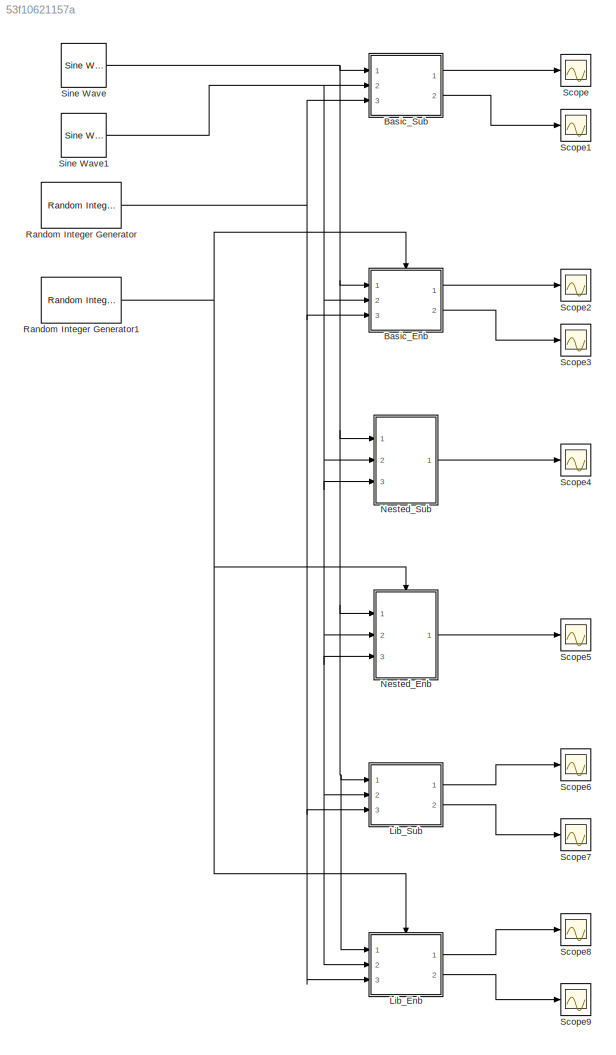
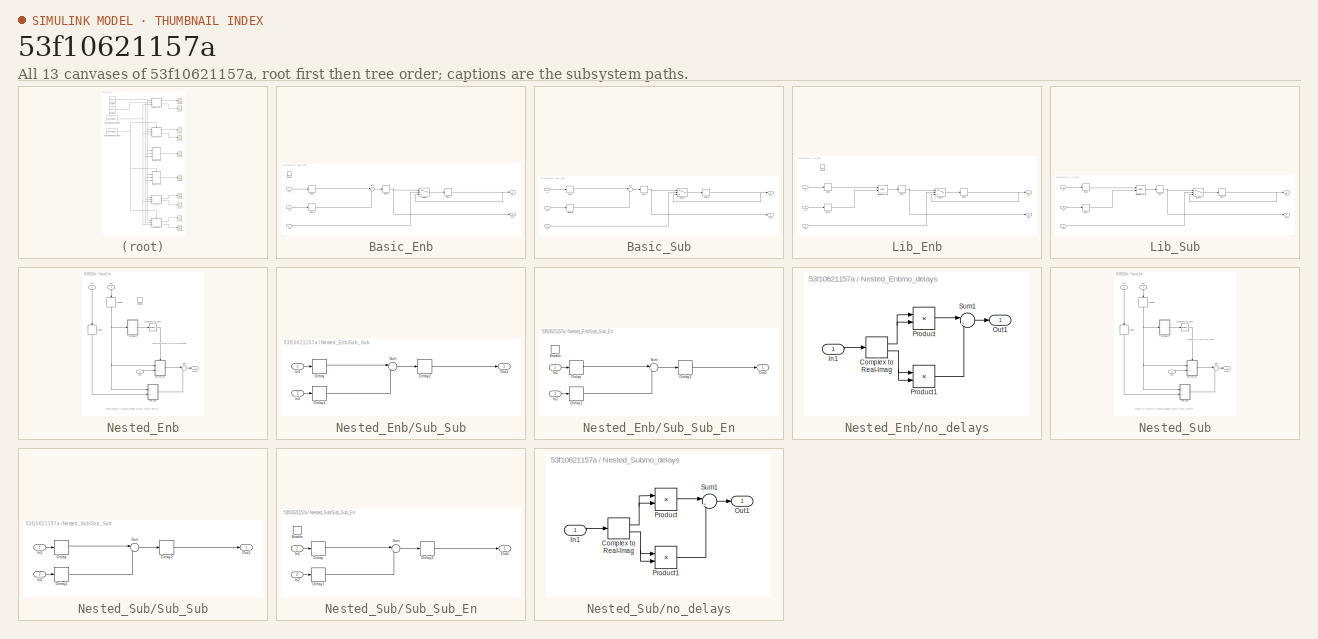
[diagram: thumbnail index - all 13 canvases of the model, root first then tree order]
MODEL slx_53f10621157a
KIND model
CONFIG AbsTol = auto
CONFIG EnableMultiTasking = off
CONFIG FixedStep = auto
CONFIG MaxStep = auto
CONFIG MinStep = auto
CONFIG RelTol = 1e-3
CONFIG SampleTimeConstraint = Unconstrained
CONFIG Solver = FixedStepDiscrete
CONFIG SolverName = FixedStepDiscrete
CONFIG StartTime = 0
CONFIG StopTime = (length(testMsg)+pad_first*2)*basePer
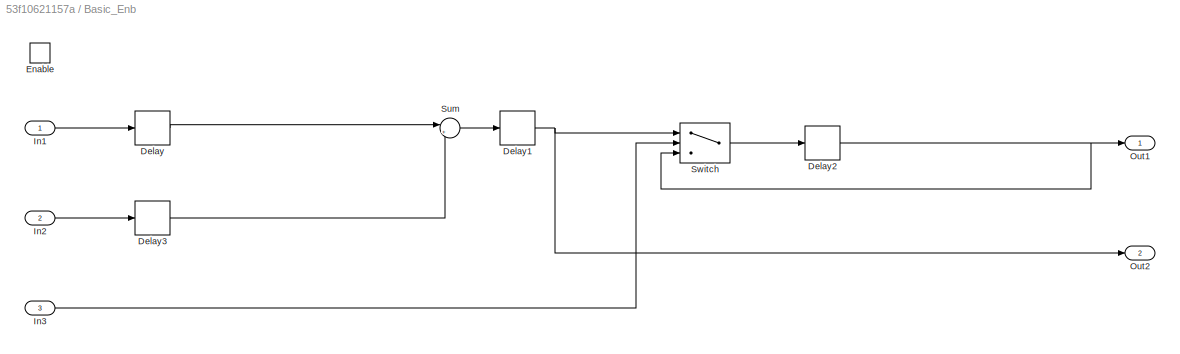
BLOCK [SubSystem] Basic_Enb
  Ports = [3, 2, 1]
  RequestExecContextInheritance = off
  Variant = off
BLOCK [Delay] Basic_Enb/Delay
  DelayLength = 3
  InitialCondition = 0
  InputPortMap = u0
  Ports = [1, 1]
BLOCK [Delay] Basic_Enb/Delay1
  DelayLength = 1
  InitialCondition = 0
  InputPortMap = u0
  Ports = [1, 1]
BLOCK [Delay] Basic_Enb/Delay2
  InitialCondition = 0
  InputPortMap = u0
  Ports = [1, 1]
BLOCK [Delay] Basic_Enb/Delay3
  DelayLength = 0
  InitialCondition = 0
  InputPortMap = u0
  Ports = [1, 1]
BLOCK [EnablePort] Basic_Enb/Enable
  Ports = []
BLOCK [Inport] Basic_Enb/In1
  IconDisplay = Port number
BLOCK [Inport] Basic_Enb/In2
  IconDisplay = Port number
  Port = 2
BLOCK [Inport] Basic_Enb/In3
  IconDisplay = Port number
  Port = 3
BLOCK [Outport] Basic_Enb/Out1
  IconDisplay = Port number
BLOCK [Outport] Basic_Enb/Out2
  IconDisplay = Port number
  Port = 2
BLOCK [Sum] Basic_Enb/Sum
  IconShape = round
  InputSameDT = off
  Inputs = |++
  Ports = [2, 1]
  SaturateOnIntegerOverflow = off
BLOCK [Switch] Basic_Enb/Switch
  Criteria = u2 > Threshold
  InputSameDT = off
  SaturateOnIntegerOverflow = off
BLOCK [SubSystem] Basic_Sub
  Ports = [3, 2]
  RequestExecContextInheritance = off
  Variant = off
BLOCK [Delay] Basic_Sub/Delay
  DelayLength = 3
  InitialCondition = 0
  InputPortMap = u0
  Ports = [1, 1]
BLOCK [Delay] Basic_Sub/Delay1
  DelayLength = 1
  InitialCondition = 0
  InputPortMap = u0
  Ports = [1, 1]
BLOCK [Delay] Basic_Sub/Delay2
  InitialCondition = 0
  InputPortMap = u0
  Ports = [1, 1]
BLOCK [Delay] Basic_Sub/Delay3
  DelayLength = 0
  InitialCondition = 0
  InputPortMap = u0
  Ports = [1, 1]
BLOCK [Inport] Basic_Sub/In1
  IconDisplay = Port number
BLOCK [Inport] Basic_Sub/In2
  IconDisplay = Port number
  Port = 2
BLOCK [Inport] Basic_Sub/In3
  IconDisplay = Port number
  Port = 3
BLOCK [Outport] Basic_Sub/Out1
  IconDisplay = Port number
BLOCK [Outport] Basic_Sub/Out2
  IconDisplay = Port number
  Port = 2
BLOCK [Sum] Basic_Sub/Sum
  IconShape = round
  InputSameDT = off
  Inputs = |++
  Ports = [2, 1]
  SaturateOnIntegerOverflow = off
BLOCK [Switch] Basic_Sub/Switch
  Criteria = u2 > Threshold
  InputSameDT = off
  SaturateOnIntegerOverflow = off
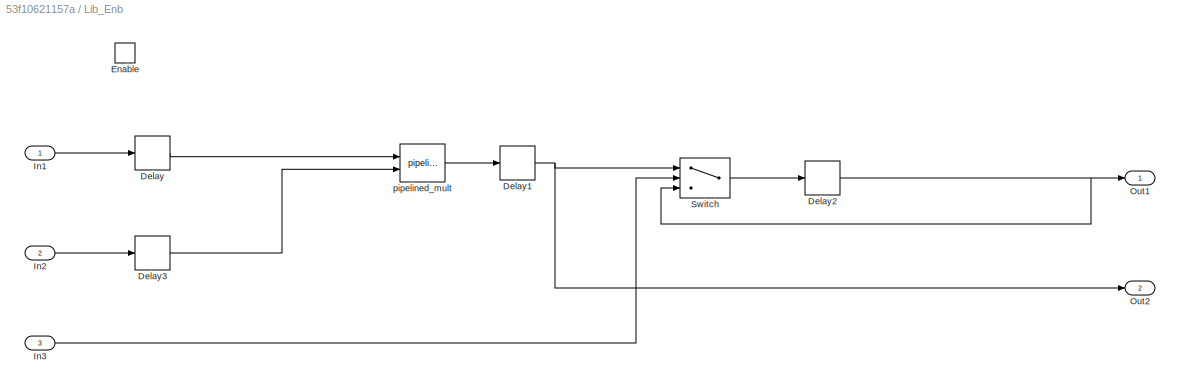
BLOCK [SubSystem] Lib_Enb
  Ports = [3, 2, 1]
  RequestExecContextInheritance = off
  Variant = off
BLOCK [Delay] Lib_Enb/Delay
  DelayLength = 3
  InitialCondition = 0
  InputPortMap = u0
  Ports = [1, 1]
BLOCK [Delay] Lib_Enb/Delay1
  DelayLength = 1
  InitialCondition = 0
  InputPortMap = u0
  Ports = [1, 1]
BLOCK [Delay] Lib_Enb/Delay2
  InitialCondition = 0
  InputPortMap = u0
  Ports = [1, 1]
BLOCK [Delay] Lib_Enb/Delay3
  DelayLength = 0
  InitialCondition = 0
  InputPortMap = u0
  Ports = [1, 1]
BLOCK [EnablePort] Lib_Enb/Enable
  Ports = []
BLOCK [Inport] Lib_Enb/In1
  IconDisplay = Port number
BLOCK [Inport] Lib_Enb/In2
  IconDisplay = Port number
  Port = 2
BLOCK [Inport] Lib_Enb/In3
  IconDisplay = Port number
  Port = 3
BLOCK [Outport] Lib_Enb/Out1
  IconDisplay = Port number
BLOCK [Outport] Lib_Enb/Out2
  IconDisplay = Port number
  Port = 2
BLOCK [Switch] Lib_Enb/Switch
  Criteria = u2 > Threshold
  InputSameDT = off
  SaturateOnIntegerOverflow = off
BLOCK [Reference] Lib_Enb/pipelined_mult  REF=helperLib/pipelined_mult
  Ports = [2, 1]
  SourceBlock = helperLib/pipelined_mult
  SourceType = Pipelined Multiplier
BLOCK [SubSystem] Lib_Sub
  Ports = [3, 2]
  RequestExecContextInheritance = off
  Variant = off
BLOCK [Delay] Lib_Sub/Delay
  DelayLength = 3
  InitialCondition = 0
  InputPortMap = u0
  Ports = [1, 1]
BLOCK [Delay] Lib_Sub/Delay1
  DelayLength = 1
  InitialCondition = 0
  InputPortMap = u0
  Ports = [1, 1]
BLOCK [Delay] Lib_Sub/Delay2
  InitialCondition = 0
  InputPortMap = u0
  Ports = [1, 1]
BLOCK [Delay] Lib_Sub/Delay3
  DelayLength = 0
  InitialCondition = 0
  InputPortMap = u0
  Ports = [1, 1]
BLOCK [Inport] Lib_Sub/In1
  IconDisplay = Port number
BLOCK [Inport] Lib_Sub/In2
  IconDisplay = Port number
  Port = 2
BLOCK [Inport] Lib_Sub/In3
  IconDisplay = Port number
  Port = 3
BLOCK [Outport] Lib_Sub/Out1
  IconDisplay = Port number
BLOCK [Outport] Lib_Sub/Out2
  IconDisplay = Port number
  Port = 2
BLOCK [Switch] Lib_Sub/Switch
  Criteria = u2 > Threshold
  InputSameDT = off
  SaturateOnIntegerOverflow = off
BLOCK [Reference] Lib_Sub/pipelined_mult  REF=helperLib/pipelined_mult
  Ports = [2, 1]
  SourceBlock = helperLib/pipelined_mult
  SourceType = Pipelined Multiplier
BLOCK [SubSystem] Nested_Enb
  Ports = [3, 1, 1]
  RequestExecContextInheritance = off
  Variant = off
BLOCK [Reference] Nested_Enb/Compare To Zero  REF=simulink/Logic and Bit
Operations/Compare
To Zero
  Ports = [1, 1]
  SourceBlock = simulink/Logic and Bit\nOperations/Compare\nTo Zero
  SourceProductBaseCode = SL
  SourceProductName = Simulink
  SourceType = Compare To Zero
BLOCK [Delay] Nested_Enb/Delay
  DelayLength = 1
  InitialCondition = 0
  InputPortMap = u0
  Ports = [1, 1]
BLOCK [Delay] Nested_Enb/Delay1
  DelayLength = 1
  InitialCondition = 0
  InputPortMap = u0
  Ports = [1, 1]
BLOCK [EnablePort] Nested_Enb/Enable
  Ports = []
BLOCK [Inport] Nested_Enb/In1
  IconDisplay = Port number
BLOCK [Inport] Nested_Enb/In2
  IconDisplay = Port number
  Port = 2
BLOCK [Inport] Nested_Enb/In3
  IconDisplay = Port number
  Port = 3
BLOCK [Outport] Nested_Enb/Out1
  IconDisplay = Port number
BLOCK [SubSystem] Nested_Enb/Sub_Sub
  Ports = [2, 1]
  RequestExecContextInheritance = off
  Variant = off
BLOCK [Delay] Nested_Enb/Sub_Sub/Delay
  InitialCondition = 0
  InputPortMap = u0
  Ports = [1, 1]
BLOCK [Delay] Nested_Enb/Sub_Sub/Delay1
  InitialCondition = 0
  InputPortMap = u0
  Ports = [1, 1]
BLOCK [Delay] Nested_Enb/Sub_Sub/Delay2
  DelayLength = 1
  InitialCondition = 0
  InputPortMap = u0
  Ports = [1, 1]
BLOCK [Inport] Nested_Enb/Sub_Sub/In1
  IconDisplay = Port number
BLOCK [Inport] Nested_Enb/Sub_Sub/In2
  IconDisplay = Port number
  Port = 2
BLOCK [Outport] Nested_Enb/Sub_Sub/Out1
  IconDisplay = Port number
BLOCK [Sum] Nested_Enb/Sub_Sub/Sum
  IconShape = round
  InputSameDT = off
  Inputs = |++
  Ports = [2, 1]
  SaturateOnIntegerOverflow = off
BLOCK [SubSystem] Nested_Enb/Sub_Sub_En
  Ports = [2, 1, 1]
  RequestExecContextInheritance = off
  Variant = off
BLOCK [Delay] Nested_Enb/Sub_Sub_En/Delay
  InitialCondition = 0
  InputPortMap = u0
  Ports = [1, 1]
BLOCK [Delay] Nested_Enb/Sub_Sub_En/Delay1
  InitialCondition = 0
  InputPortMap = u0
  Ports = [1, 1]
BLOCK [Delay] Nested_Enb/Sub_Sub_En/Delay2
  DelayLength = 1
  InitialCondition = 0
  InputPortMap = u0
  Ports = [1, 1]
BLOCK [EnablePort] Nested_Enb/Sub_Sub_En/Enable
  Ports = []
BLOCK [Inport] Nested_Enb/Sub_Sub_En/In1
  IconDisplay = Port number
BLOCK [Inport] Nested_Enb/Sub_Sub_En/In2
  IconDisplay = Port number
  Port = 2
BLOCK [Outport] Nested_Enb/Sub_Sub_En/Out1
  IconDisplay = Port number
BLOCK [Sum] Nested_Enb/Sub_Sub_En/Sum
  IconShape = round
  InputSameDT = off
  Inputs = |++
  Ports = [2, 1]
  SaturateOnIntegerOverflow = off
BLOCK [Sum] Nested_Enb/Sum
  IconShape = round
  InputSameDT = off
  Inputs = |++
  Ports = [2, 1]
  SaturateOnIntegerOverflow = off
BLOCK [SubSystem] Nested_Enb/no_delays
  Ports = [1, 1]
  RequestExecContextInheritance = off
  Variant = off
BLOCK [ComplexToRealImag] Nested_Enb/no_delays/Complex to Real-Imag
  Ports = [1, 2]
BLOCK [Inport] Nested_Enb/no_delays/In1
  IconDisplay = Port number
BLOCK [Outport] Nested_Enb/no_delays/Out1
  IconDisplay = Port number
BLOCK [Product] Nested_Enb/no_delays/Product
  InputSameDT = off
  OutDataTypeStr = Inherit: Inherit via internal rule
  Ports = [2, 1]
  RndMeth = Floor
  SaturateOnIntegerOverflow = off
BLOCK [Product] Nested_Enb/no_delays/Product1
  InputSameDT = off
  OutDataTypeStr = Inherit: Inherit via internal rule
  Ports = [2, 1]
  RndMeth = Floor
  SaturateOnIntegerOverflow = off
BLOCK [Sum] Nested_Enb/no_delays/Sum1
  IconShape = round
  InputSameDT = off
  Inputs = |++
  Ports = [2, 1]
  SaturateOnIntegerOverflow = off
BLOCK [SubSystem] Nested_Sub
  Ports = [3, 1]
  RequestExecContextInheritance = off
  Variant = off
BLOCK [Reference] Nested_Sub/Compare To Zero  REF=simulink/Logic and Bit
Operations/Compare
To Zero
  Ports = [1, 1]
  SourceBlock = simulink/Logic and Bit\nOperations/Compare\nTo Zero
  SourceProductBaseCode = SL
  SourceProductName = Simulink
  SourceType = Compare To Zero
BLOCK [Delay] Nested_Sub/Delay
  DelayLength = 1
  InitialCondition = 0
  InputPortMap = u0
  Ports = [1, 1]
BLOCK [Delay] Nested_Sub/Delay1
  DelayLength = 1
  InitialCondition = 0
  InputPortMap = u0
  Ports = [1, 1]
BLOCK [Inport] Nested_Sub/In1
  IconDisplay = Port number
BLOCK [Inport] Nested_Sub/In2
  IconDisplay = Port number
  Port = 2
BLOCK [Inport] Nested_Sub/In3
  IconDisplay = Port number
  Port = 3
BLOCK [Outport] Nested_Sub/Out1
  IconDisplay = Port number
BLOCK [SubSystem] Nested_Sub/Sub_Sub
  Ports = [2, 1]
  RequestExecContextInheritance = off
  Variant = off
BLOCK [Delay] Nested_Sub/Sub_Sub/Delay
  InitialCondition = 0
  InputPortMap = u0
  Ports = [1, 1]
BLOCK [Delay] Nested_Sub/Sub_Sub/Delay1
  InitialCondition = 0
  InputPortMap = u0
  Ports = [1, 1]
BLOCK [Delay] Nested_Sub/Sub_Sub/Delay2
  DelayLength = 1
  InitialCondition = 0
  InputPortMap = u0
  Ports = [1, 1]
BLOCK [Inport] Nested_Sub/Sub_Sub/In1
  IconDisplay = Port number
BLOCK [Inport] Nested_Sub/Sub_Sub/In2
  IconDisplay = Port number
  Port = 2
BLOCK [Outport] Nested_Sub/Sub_Sub/Out1
  IconDisplay = Port number
BLOCK [Sum] Nested_Sub/Sub_Sub/Sum
  IconShape = round
  InputSameDT = off
  Inputs = |++
  Ports = [2, 1]
  SaturateOnIntegerOverflow = off
BLOCK [SubSystem] Nested_Sub/Sub_Sub_En
  Ports = [2, 1, 1]
  RequestExecContextInheritance = off
  Variant = off
BLOCK [Delay] Nested_Sub/Sub_Sub_En/Delay
  InitialCondition = 0
  InputPortMap = u0
  Ports = [1, 1]
BLOCK [Delay] Nested_Sub/Sub_Sub_En/Delay1
  InitialCondition = 0
  InputPortMap = u0
  Ports = [1, 1]
BLOCK [Delay] Nested_Sub/Sub_Sub_En/Delay2
  DelayLength = 1
  InitialCondition = 0
  InputPortMap = u0
  Ports = [1, 1]
BLOCK [EnablePort] Nested_Sub/Sub_Sub_En/Enable
  Ports = []
BLOCK [Inport] Nested_Sub/Sub_Sub_En/In1
  IconDisplay = Port number
BLOCK [Inport] Nested_Sub/Sub_Sub_En/In2
  IconDisplay = Port number
  Port = 2
BLOCK [Outport] Nested_Sub/Sub_Sub_En/Out1
  IconDisplay = Port number
BLOCK [Sum] Nested_Sub/Sub_Sub_En/Sum
  IconShape = round
  InputSameDT = off
  Inputs = |++
  Ports = [2, 1]
  SaturateOnIntegerOverflow = off
BLOCK [Sum] Nested_Sub/Sum
  IconShape = round
  InputSameDT = off
  Inputs = |++
  Ports = [2, 1]
  SaturateOnIntegerOverflow = off
BLOCK [SubSystem] Nested_Sub/no_delays
  Ports = [1, 1]
  RequestExecContextInheritance = off
  Variant = off
BLOCK [ComplexToRealImag] Nested_Sub/no_delays/Complex to Real-Imag
  Ports = [1, 2]
BLOCK [Inport] Nested_Sub/no_delays/In1
  IconDisplay = Port number
BLOCK [Outport] Nested_Sub/no_delays/Out1
  IconDisplay = Port number
BLOCK [Product] Nested_Sub/no_delays/Product
  InputSameDT = off
  OutDataTypeStr = Inherit: Inherit via internal rule
  Ports = [2, 1]
  RndMeth = Floor
  SaturateOnIntegerOverflow = off
BLOCK [Product] Nested_Sub/no_delays/Product1
  InputSameDT = off
  OutDataTypeStr = Inherit: Inherit via internal rule
  Ports = [2, 1]
  RndMeth = Floor
  SaturateOnIntegerOverflow = off
BLOCK [Sum] Nested_Sub/no_delays/Sum1
  IconShape = round
  InputSameDT = off
  Inputs = |++
  Ports = [2, 1]
  SaturateOnIntegerOverflow = off
BLOCK [Reference] Random Integer Generator  REF=commrandsrc3/Random Integer
Generator
  Ports = [0, 1]
  SourceBlock = commrandsrc3/Random Integer\nGenerator
  SourceProductBaseCode = CM
  SourceProductName = Communications System Toolbox
  SourceType = Random Integer Generator
BLOCK [Reference] Random Integer Generator1  REF=commrandsrc3/Random Integer
Generator
  Ports = [0, 1]
  SourceBlock = commrandsrc3/Random Integer\nGenerator
  SourceProductBaseCode = CM
  SourceProductName = Communications System Toolbox
  SourceType = Random Integer Generator
BLOCK [Scope] Scope
  NumInputPorts = 1
  Ports = [1]
  ScopeSpecificationString = Simulink.scopes.TimeScopeBlockCfg('CurrentConfiguration', extmgr.ConfigurationSet(extmgr.Configuration('Core','General UI',true),extmgr.Configuration('Core','Source UI',true),extmgr.Configuration('Sources','WiredSimulink',true),extmgr.Configuration('Visuals','Time Domain',true,'SerializedDisplays',{struct('MinYLimReal','-2.48828','MaxYLimReal','2.47754','YLabelReal','','MinYLimMag','0.00000','MaxY...<+1357ch>
BLOCK [Scope] Scope1
  NumInputPorts = 1
  Ports = [1]
  ScopeSpecificationString = Simulink.scopes.TimeScopeBlockCfg('CurrentConfiguration', extmgr.ConfigurationSet(extmgr.Configuration('Core','General UI',true),extmgr.Configuration('Core','Source UI',true),extmgr.Configuration('Sources','WiredSimulink',true,'DataLoggingVariableName','ScopeData1'),extmgr.Configuration('Visuals','Time Domain',true,'SerializedDisplays',{struct('MinYLimReal','-2.49615','MaxYLimReal','2.49957','YLab...<+1396ch>
BLOCK [Scope] Scope2
  NumInputPorts = 1
  Ports = [1]
  ScopeSpecificationString = Simulink.scopes.TimeScopeBlockCfg('CurrentConfiguration', extmgr.ConfigurationSet(extmgr.Configuration('Core','General UI',true),extmgr.Configuration('Core','Source UI',true),extmgr.Configuration('Sources','WiredSimulink',true,'DataLoggingVariableName','ScopeData2'),extmgr.Configuration('Visuals','Time Domain',true,'SerializedDisplays',{struct('MinYLimReal','-2.4873','MaxYLimReal','2.47852','YLabe...<+1392ch>
BLOCK [Scope] Scope3
  NumInputPorts = 1
  Ports = [1]
  ScopeSpecificationString = Simulink.scopes.TimeScopeBlockCfg('CurrentConfiguration', extmgr.ConfigurationSet(extmgr.Configuration('Core','General UI',true),extmgr.Configuration('Core','Source UI',true),extmgr.Configuration('Sources','WiredSimulink',true,'DataLoggingVariableName','ScopeData3'),extmgr.Configuration('Visuals','Time Domain',true,'SerializedDisplays',{struct('MinYLimReal','-2.49615','MaxYLimReal','2.49957','YLab...<+1396ch>
BLOCK [Scope] Scope4
  NumInputPorts = 1
  Ports = [1]
  ScopeSpecificationString = Simulink.scopes.TimeScopeBlockCfg('CurrentConfiguration', extmgr.ConfigurationSet(extmgr.Configuration('Core','General UI',true),extmgr.Configuration('Core','Source UI',true),extmgr.Configuration('Sources','WiredSimulink',true,'DataLoggingVariableName','ScopeData1'),extmgr.Configuration('Visuals','Time Domain',true,'SerializedDisplays',{struct('MinYLimReal','-2.4873','MaxYLimReal','2.47852','YLabe...<+1392ch>  <repeated x3 — deduplicated; at blocks: Scope4, Scope5, Scope6>
BLOCK [Scope] Scope5
  NumInputPorts = 1
  Ports = [1]
BLOCK [Scope] Scope6
  NumInputPorts = 1
  Ports = [1]
BLOCK [Scope] Scope7
  NumInputPorts = 1
  Ports = [1]
  ScopeSpecificationString = Simulink.scopes.TimeScopeBlockCfg('CurrentConfiguration', extmgr.ConfigurationSet(extmgr.Configuration('Core','General UI',true),extmgr.Configuration('Core','Source UI',true),extmgr.Configuration('Sources','WiredSimulink',true,'DataLoggingVariableName','ScopeData2'),extmgr.Configuration('Visuals','Time Domain',true,'SerializedDisplays',{struct('MinYLimReal','-2.4873','MaxYLimReal','2.47852','YLabe...<+1392ch>
BLOCK [Scope] Scope8
  NumInputPorts = 1
  Ports = [1]
  ScopeSpecificationString = Simulink.scopes.TimeScopeBlockCfg('CurrentConfiguration', extmgr.ConfigurationSet(extmgr.Configuration('Core','General UI',true),extmgr.Configuration('Core','Source UI',true),extmgr.Configuration('Sources','WiredSimulink',true,'DataLoggingVariableName','ScopeData3'),extmgr.Configuration('Visuals','Time Domain',true,'SerializedDisplays',{struct('MinYLimReal','-2.4873','MaxYLimReal','2.47852','YLabe...<+1392ch>
BLOCK [Scope] Scope9
  NumInputPorts = 1
  Ports = [1]
  ScopeSpecificationString = Simulink.scopes.TimeScopeBlockCfg('CurrentConfiguration', extmgr.ConfigurationSet(extmgr.Configuration('Core','General UI',true),extmgr.Configuration('Core','Source UI',true),extmgr.Configuration('Sources','WiredSimulink',true,'DataLoggingVariableName','ScopeData4'),extmgr.Configuration('Visuals','Time Domain',true,'SerializedDisplays',{struct('MinYLimReal','-2.4873','MaxYLimReal','2.47852','YLabe...<+1392ch>
BLOCK [Reference] Sine Wave  REF=dspsrcs4/Sine Wave
  Ports = [0, 1]
  SourceBlock = dspsrcs4/Sine Wave
  SourceProductBaseCode = DS
  SourceProductName = DSP System Toolbox
  SourceType = Sine Wave
BLOCK [Reference] Sine Wave1  REF=dspsrcs4/Sine Wave
  Ports = [0, 1]
  SourceBlock = dspsrcs4/Sine Wave
  SourceProductBaseCode = DS
  SourceProductName = DSP System Toolbox
  SourceType = Sine Wave
ANNOTATION Nested_Enb: Should become a pseudo-enabled system when c-slowed
ANNOTATION Nested_Enb: should be and-ed with external enable
ANNOTATION Nested_Sub: Should NOT become a pseudo-enabled system when c-slowed
ANNOTATION Nested_Sub: should NOT have AND block
NET Basic_Enb/Delay1:1 -> Basic_Enb/Out2:1, Basic_Enb/Switch:1
NET Basic_Enb/Delay2:1 -> Basic_Enb/Out1:1, Basic_Enb/Switch:3
LINE Basic_Enb/Delay3:1 -> Basic_Enb/Sum:2
LINE Basic_Enb/Delay:1 -> Basic_Enb/Sum:1
LINE Basic_Enb/In1:1 -> Basic_Enb/Delay:1
LINE Basic_Enb/In2:1 -> Basic_Enb/Delay3:1
LINE Basic_Enb/In3:1 -> Basic_Enb/Switch:2
LINE Basic_Enb/Sum:1 -> Basic_Enb/Delay1:1
LINE Basic_Enb/Switch:1 -> Basic_Enb/Delay2:1
LINE Basic_Enb:1 -> Scope2:1
LINE Basic_Enb:2 -> Scope3:1
NET Basic_Sub/Delay1:1 -> Basic_Sub/Out2:1, Basic_Sub/Switch:1
NET Basic_Sub/Delay2:1 -> Basic_Sub/Out1:1, Basic_Sub/Switch:3
LINE Basic_Sub/Delay3:1 -> Basic_Sub/Sum:2
LINE Basic_Sub/Delay:1 -> Basic_Sub/Sum:1
LINE Basic_Sub/In1:1 -> Basic_Sub/Delay:1
LINE Basic_Sub/In2:1 -> Basic_Sub/Delay3:1
LINE Basic_Sub/In3:1 -> Basic_Sub/Switch:2
LINE Basic_Sub/Sum:1 -> Basic_Sub/Delay1:1
LINE Basic_Sub/Switch:1 -> Basic_Sub/Delay2:1
LINE Basic_Sub:1 -> Scope:1
LINE Basic_Sub:2 -> Scope1:1
NET Lib_Enb/Delay1:1 -> Lib_Enb/Out2:1, Lib_Enb/Switch:1
NET Lib_Enb/Delay2:1 -> Lib_Enb/Out1:1, Lib_Enb/Switch:3
LINE Lib_Enb/Delay3:1 -> Lib_Enb/pipelined_mult:2
LINE Lib_Enb/Delay:1 -> Lib_Enb/pipelined_mult:1
LINE Lib_Enb/In1:1 -> Lib_Enb/Delay:1
LINE Lib_Enb/In2:1 -> Lib_Enb/Delay3:1
LINE Lib_Enb/In3:1 -> Lib_Enb/Switch:2
LINE Lib_Enb/Switch:1 -> Lib_Enb/Delay2:1
LINE Lib_Enb/pipelined_mult:1 -> Lib_Enb/Delay1:1
LINE Lib_Enb:1 -> Scope8:1
LINE Lib_Enb:2 -> Scope9:1
NET Lib_Sub/Delay1:1 -> Lib_Sub/Out2:1, Lib_Sub/Switch:1
NET Lib_Sub/Delay2:1 -> Lib_Sub/Out1:1, Lib_Sub/Switch:3
LINE Lib_Sub/Delay3:1 -> Lib_Sub/pipelined_mult:2
LINE Lib_Sub/Delay:1 -> Lib_Sub/pipelined_mult:1
LINE Lib_Sub/In1:1 -> Lib_Sub/Delay:1
LINE Lib_Sub/In2:1 -> Lib_Sub/Delay3:1
LINE Lib_Sub/In3:1 -> Lib_Sub/Switch:2
LINE Lib_Sub/Switch:1 -> Lib_Sub/Delay2:1
LINE Lib_Sub/pipelined_mult:1 -> Lib_Sub/Delay1:1
LINE Lib_Sub:1 -> Scope6:1
LINE Lib_Sub:2 -> Scope7:1
LINE Nested_Enb/Compare To Zero:1 -> Nested_Enb/Sub_Sub_En:enable
NET Nested_Enb/Delay1:1 -> Nested_Enb/Sub_Sub:1, Nested_Enb/Sub_Sub_En:1, Nested_Enb/no_delays:1
LINE Nested_Enb/Delay:1 -> Nested_Enb/Sub_Sub:2
LINE Nested_Enb/In1:1 -> Nested_Enb/Delay1:1
LINE Nested_Enb/In2:1 -> Nested_Enb/Delay:1
LINE Nested_Enb/In3:1 -> Nested_Enb/Sub_Sub_En:2
LINE Nested_Enb/Sub_Sub/Delay1:1 -> Nested_Enb/Sub_Sub/Sum:2
LINE Nested_Enb/Sub_Sub/Delay2:1 -> Nested_Enb/Sub_Sub/Out1:1
LINE Nested_Enb/Sub_Sub/Delay:1 -> Nested_Enb/Sub_Sub/Sum:1
LINE Nested_Enb/Sub_Sub/In1:1 -> Nested_Enb/Sub_Sub/Delay:1
LINE Nested_Enb/Sub_Sub/In2:1 -> Nested_Enb/Sub_Sub/Delay1:1
LINE Nested_Enb/Sub_Sub/Sum:1 -> Nested_Enb/Sub_Sub/Delay2:1
LINE Nested_Enb/Sub_Sub:1 -> Nested_Enb/Sum:2
LINE Nested_Enb/Sub_Sub_En/Delay1:1 -> Nested_Enb/Sub_Sub_En/Sum:2
LINE Nested_Enb/Sub_Sub_En/Delay2:1 -> Nested_Enb/Sub_Sub_En/Out1:1
LINE Nested_Enb/Sub_Sub_En/Delay:1 -> Nested_Enb/Sub_Sub_En/Sum:1
LINE Nested_Enb/Sub_Sub_En/In1:1 -> Nested_Enb/Sub_Sub_En/Delay:1
LINE Nested_Enb/Sub_Sub_En/In2:1 -> Nested_Enb/Sub_Sub_En/Delay1:1
LINE Nested_Enb/Sub_Sub_En/Sum:1 -> Nested_Enb/Sub_Sub_En/Delay2:1
LINE Nested_Enb/Sub_Sub_En:1 -> Nested_Enb/Sum:1
LINE Nested_Enb/Sum:1 -> Nested_Enb/Out1:1
NET Nested_Enb/no_delays/Complex to Real-Imag:1 -> Nested_Enb/no_delays/Product:1, Nested_Enb/no_delays/Product:2
NET Nested_Enb/no_delays/Complex to Real-Imag:2 -> Nested_Enb/no_delays/Product1:1, Nested_Enb/no_delays/Product1:2
LINE Nested_Enb/no_delays/In1:1 -> Nested_Enb/no_delays/Complex to Real-Imag:1
LINE Nested_Enb/no_delays/Product1:1 -> Nested_Enb/no_delays/Sum1:2
LINE Nested_Enb/no_delays/Product:1 -> Nested_Enb/no_delays/Sum1:1
LINE Nested_Enb/no_delays/Sum1:1 -> Nested_Enb/no_delays/Out1:1
LINE Nested_Enb/no_delays:1 -> Nested_Enb/Compare To Zero:1
LINE Nested_Enb:1 -> Scope5:1
LINE Nested_Sub/Compare To Zero:1 -> Nested_Sub/Sub_Sub_En:enable
NET Nested_Sub/Delay1:1 -> Nested_Sub/Sub_Sub:1, Nested_Sub/Sub_Sub_En:1, Nested_Sub/no_delays:1
LINE Nested_Sub/Delay:1 -> Nested_Sub/Sub_Sub:2
LINE Nested_Sub/In1:1 -> Nested_Sub/Delay1:1
LINE Nested_Sub/In2:1 -> Nested_Sub/Delay:1
LINE Nested_Sub/In3:1 -> Nested_Sub/Sub_Sub_En:2
LINE Nested_Sub/Sub_Sub/Delay1:1 -> Nested_Sub/Sub_Sub/Sum:2
LINE Nested_Sub/Sub_Sub/Delay2:1 -> Nested_Sub/Sub_Sub/Out1:1
LINE Nested_Sub/Sub_Sub/Delay:1 -> Nested_Sub/Sub_Sub/Sum:1
LINE Nested_Sub/Sub_Sub/In1:1 -> Nested_Sub/Sub_Sub/Delay:1
LINE Nested_Sub/Sub_Sub/In2:1 -> Nested_Sub/Sub_Sub/Delay1:1
LINE Nested_Sub/Sub_Sub/Sum:1 -> Nested_Sub/Sub_Sub/Delay2:1
LINE Nested_Sub/Sub_Sub:1 -> Nested_Sub/Sum:2
LINE Nested_Sub/Sub_Sub_En/Delay1:1 -> Nested_Sub/Sub_Sub_En/Sum:2
LINE Nested_Sub/Sub_Sub_En/Delay2:1 -> Nested_Sub/Sub_Sub_En/Out1:1
LINE Nested_Sub/Sub_Sub_En/Delay:1 -> Nested_Sub/Sub_Sub_En/Sum:1
LINE Nested_Sub/Sub_Sub_En/In1:1 -> Nested_Sub/Sub_Sub_En/Delay:1
LINE Nested_Sub/Sub_Sub_En/In2:1 -> Nested_Sub/Sub_Sub_En/Delay1:1
LINE Nested_Sub/Sub_Sub_En/Sum:1 -> Nested_Sub/Sub_Sub_En/Delay2:1
LINE Nested_Sub/Sub_Sub_En:1 -> Nested_Sub/Sum:1
LINE Nested_Sub/Sum:1 -> Nested_Sub/Out1:1
NET Nested_Sub/no_delays/Complex to Real-Imag:1 -> Nested_Sub/no_delays/Product:1, Nested_Sub/no_delays/Product:2
NET Nested_Sub/no_delays/Complex to Real-Imag:2 -> Nested_Sub/no_delays/Product1:1, Nested_Sub/no_delays/Product1:2
LINE Nested_Sub/no_delays/In1:1 -> Nested_Sub/no_delays/Complex to Real-Imag:1
LINE Nested_Sub/no_delays/Product1:1 -> Nested_Sub/no_delays/Sum1:2
LINE Nested_Sub/no_delays/Product:1 -> Nested_Sub/no_delays/Sum1:1
LINE Nested_Sub/no_delays/Sum1:1 -> Nested_Sub/no_delays/Out1:1
LINE Nested_Sub/no_delays:1 -> Nested_Sub/Compare To Zero:1
LINE Nested_Sub:1 -> Scope4:1
NET Random Integer Generator1:1 -> Basic_Enb:enable, Lib_Enb:enable, Nested_Enb:enable
NET Random Integer Generator:1 -> Basic_Enb:3, Basic_Sub:3, Lib_Enb:3, Lib_Sub:3
NET Sine Wave1:1 -> Basic_Enb:2, Basic_Sub:2, Lib_Enb:2, Lib_Sub:2, Nested_Enb:2, Nested_Enb:3, Nested_Sub:2, Nested_Sub:3
NET Sine Wave:1 -> Basic_Enb:1, Basic_Sub:1, Lib_Enb:1, Lib_Sub:1, Nested_Enb:1, Nested_Sub:1
note: NET lines group one-source signal fan-out (src -> all destinations, sorted); 1:1 wires keep LINE
